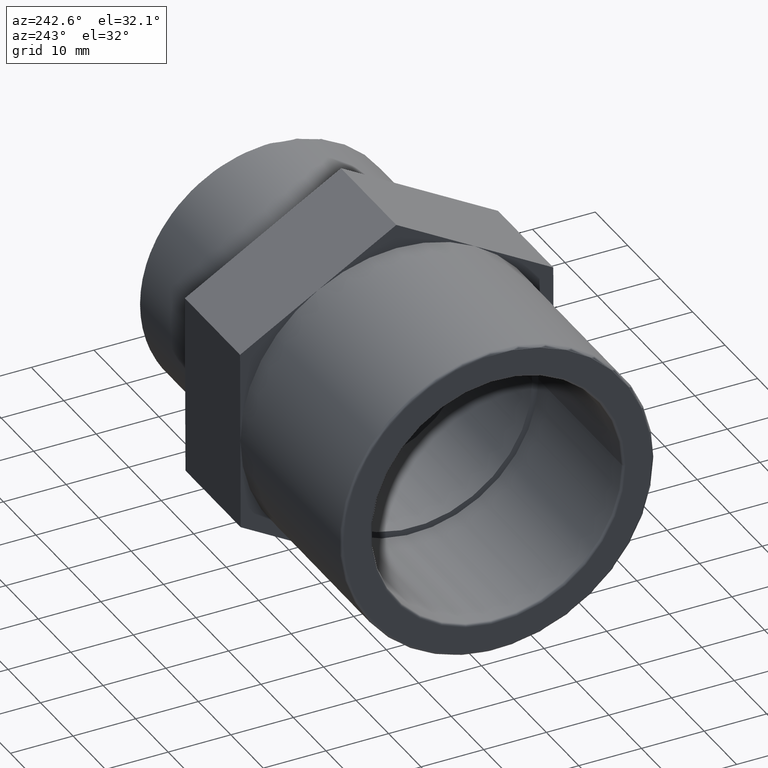
[diagram: clean part render]
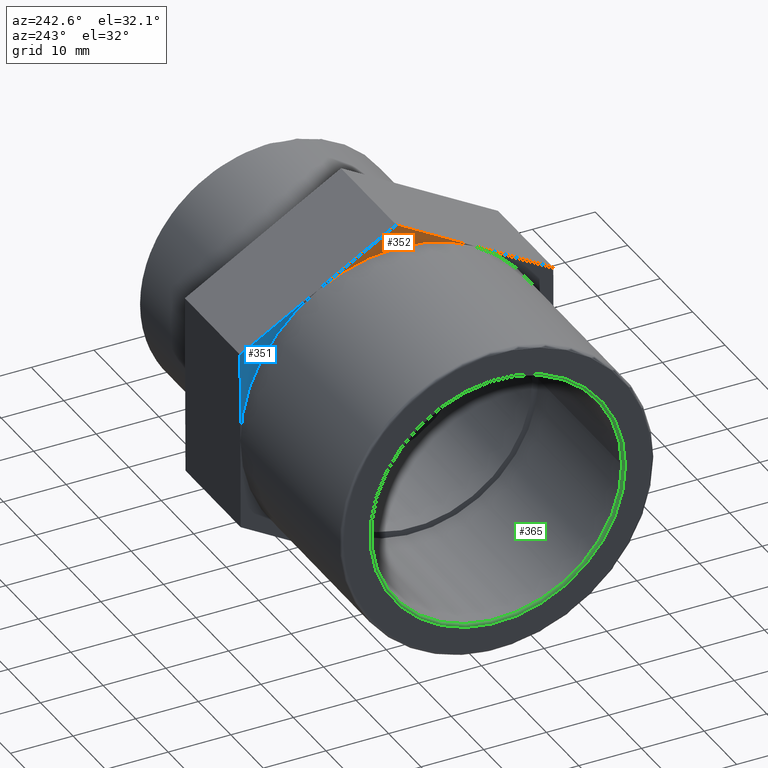
[diagram: same view with three faces highlighted in distinct colors, each labeled with its STEP entity id]
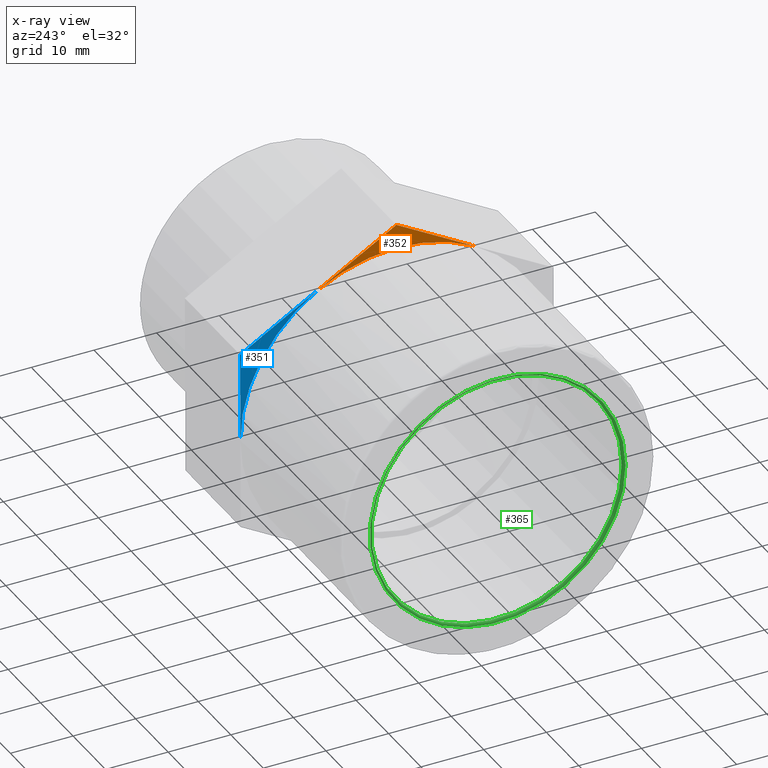
[diagram: x-ray of the same camera — body ghosted, the three highlighted faces saturated]
A machine part, auxiliary view with three faces highlighted in distinct colors.
The next image is the same camera in x-ray (body ghosted, the three faces saturated) — at least one of them is partly hidden behind the body in this view.
Their STEP definitions:

[orange] entity #352 — the highlighted planar face has unit normal (1, 0, 0).
#39=CIRCLE('',#382,25.);
#61=FACE_OUTER_BOUND('',#87,.T.);
#87=EDGE_LOOP('',(#263,#264,#265));
#130=LINE('',#555,#154);
#135=LINE('',#564,#159);
#154=VECTOR('',#434,14.4337567297407);
#159=VECTOR('',#441,14.4337567297407);
#177=VERTEX_POINT('',#552);
#178=VERTEX_POINT('',#554);
#181=VERTEX_POINT('',#562);
#209=EDGE_CURVE('',#177,#178,#130,.T.);
#214=EDGE_CURVE('',#181,#177,#135,.T.);
#217=EDGE_CURVE('',#178,#181,#39,.T.);
#263=ORIENTED_EDGE('',*,*,#217,.F.);
#264=ORIENTED_EDGE('',*,*,#209,.F.);
#265=ORIENTED_EDGE('',*,*,#214,.F.);
#335=PLANE('',#381);
#352=ADVANCED_FACE('',(#61),#335,.F.);
#381=AXIS2_PLACEMENT_3D('',#569,#447,#448);
#382=AXIS2_PLACEMENT_3D('',#570,#449,#450);
#434=DIRECTION('',(5.84531452177392E-16,-0.867829368634533,-0.496862342037901));
#441=DIRECTION('',(5.8209366944984E-16,-0.864210094705921,0.503131108368766));
#447=DIRECTION('center_axis',(1.,6.73555739531044E-16,3.25955538390483E-32));
#448=DIRECTION('ref_axis',(0.,0.,-1.));
#449=DIRECTION('center_axis',(-1.,-6.73555739531044E-16,-3.25955538390483E-32));
#450=DIRECTION('ref_axis',(6.66133814775094E-16,-1.,0.));
#552=CARTESIAN_POINT('',(-4.00000000000001,0.104479438847777,28.8673243890076));
#554=CARTESIAN_POINT('',(-4.,-12.4215585509475,21.6957342158633));
#555=CARTESIAN_POINT('',(-4.00000000000001,0.104479438847777,28.8673243890076));
#562=CARTESIAN_POINT('',(-4.00000000000002,12.5782777092192,21.605252367648));
#564=CARTESIAN_POINT('',(-4.00000000000003,25.0520759795906,14.3431803462885));
#569=CARTESIAN_POINT('Origin',(-4.00000000000001,4.23051791004384E-15,3.84592537276713E-16));
#570=CARTESIAN_POINT('Origin',(-4.00000000000001,3.73517273739942E-15,0.));

[blue] entity #351 — the highlighted planar face has unit normal (1, 0, 0).
#38=CIRCLE('',#380,25.);
#60=FACE_OUTER_BOUND('',#86,.T.);
#86=EDGE_LOOP('',(#260,#261,#262));
#134=LINE('',#563,#158);
#136=LINE('',#568,#160);
#158=VECTOR('',#440,14.4337567297406);
#160=VECTOR('',#446,14.4337567297407);
#180=VERTEX_POINT('',#560);
#181=VERTEX_POINT('',#562);
#182=VERTEX_POINT('',#566);
#213=EDGE_CURVE('',#180,#181,#134,.T.);
#215=EDGE_CURVE('',#181,#182,#38,.T.);
#216=EDGE_CURVE('',#182,#180,#136,.T.);
#260=ORIENTED_EDGE('',*,*,#215,.F.);
#261=ORIENTED_EDGE('',*,*,#213,.F.);
#262=ORIENTED_EDGE('',*,*,#216,.F.);
#334=PLANE('',#379);
#351=ADVANCED_FACE('',(#60),#334,.F.);
#379=AXIS2_PLACEMENT_3D('',#565,#442,#443);
#380=AXIS2_PLACEMENT_3D('',#567,#444,#445);
#440=DIRECTION('',(5.8209366944984E-16,-0.864210094705921,0.503131108368766));
#442=DIRECTION('center_axis',(1.,6.73555739531044E-16,3.25955538390483E-32));
#443=DIRECTION('ref_axis',(0.,0.,-1.));
#444=DIRECTION('center_axis',(-1.,-6.73555739531044E-16,-3.25955538390483E-32));
#445=DIRECTION('ref_axis',(6.66133814775094E-16,-1.,0.));
#446=DIRECTION('',(-2.4377827275516E-18,0.00361927392861188,0.999993450406666));
#560=CARTESIAN_POINT('',(-4.00000000000003,25.0520759795906,14.3431803462885));
#562=CARTESIAN_POINT('',(-4.00000000000002,12.5782777092192,21.605252367648));
#563=CARTESIAN_POINT('',(-4.00000000000003,25.0520759795906,14.3431803462885));
#565=CARTESIAN_POINT('Origin',(-4.00000000000001,4.23051791004384E-15,3.84592537276713E-16));
#566=CARTESIAN_POINT('',(-4.00000000000003,24.9998362601667,-0.0904818482152971));
#567=CARTESIAN_POINT('Origin',(-4.00000000000001,3.73517273739942E-15,0.));
#568=CARTESIAN_POINT('',(-4.00000000000003,24.9475965407428,-14.5241440427191));

[green] entity #365 — the highlighted toroidal blend (fillet) surface has major radius 20.4 mm and minor (blend) radius 0.4 mm.
#25=FACE_BOUND('',#106,.T.);
#36=TOROIDAL_SURFACE('',#405,20.4,0.4);
#50=CIRCLE('',#406,20.4);
#51=CIRCLE('',#407,20.);
#74=FACE_OUTER_BOUND('',#105,.T.);
#105=EDGE_LOOP('',(#303));
#106=EDGE_LOOP('',(#304));
#195=VERTEX_POINT('',#616);
#196=VERTEX_POINT('',#618);
#238=EDGE_CURVE('',#195,#195,#50,.T.);
#239=EDGE_CURVE('',#196,#196,#51,.T.);
#303=ORIENTED_EDGE('',*,*,#238,.T.);
#304=ORIENTED_EDGE('',*,*,#239,.T.);
#365=ADVANCED_FACE('',(#74,#25),#36,.T.);
#405=AXIS2_PLACEMENT_3D('',#615,#505,#506);
#406=AXIS2_PLACEMENT_3D('',#617,#507,#508);
#407=AXIS2_PLACEMENT_3D('',#619,#509,#510);
#505=DIRECTION('center_axis',(-1.,-6.73555739531044E-16,0.));
#506=DIRECTION('ref_axis',(0.,0.,1.));
#507=DIRECTION('center_axis',(-1.,-6.73555739531044E-16,0.));
#508=DIRECTION('ref_axis',(-6.73555739531044E-16,1.,6.12323399573677E-17));
#509=DIRECTION('center_axis',(1.,6.73555739531044E-16,0.));
#510=DIRECTION('ref_axis',(-6.73072708679001E-16,1.,6.12323399573677E-17));
#615=CARTESIAN_POINT('Origin',(-34.6,-1.68756328922505E-14,0.));
#616=CARTESIAN_POINT('',(-35.,-20.4,1.2491397351303E-15));
#617=CARTESIAN_POINT('Origin',(-35.,-1.71450551880629E-14,0.));
#618=CARTESIAN_POINT('',(-34.6,-20.,-3.67394039744206E-15));
#619=CARTESIAN_POINT('Origin',(-34.6,-1.68756328922505E-14,0.));